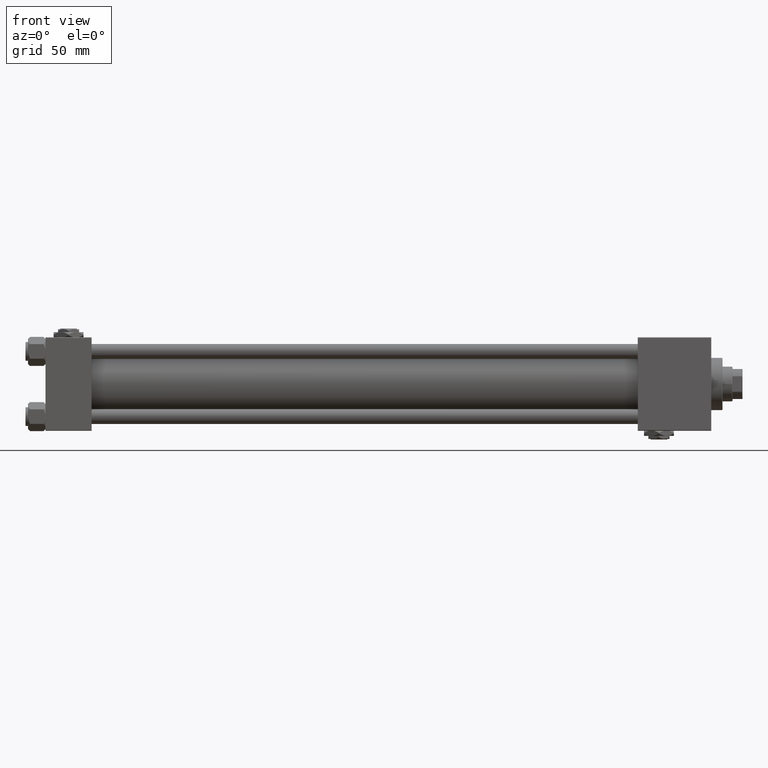
[diagram: clean part render]
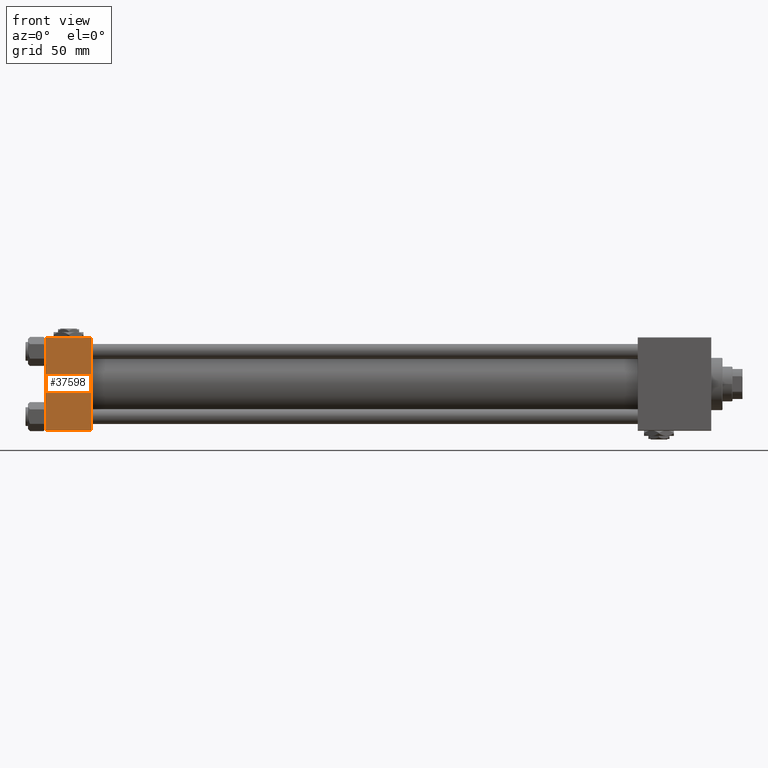
[diagram: same view with one face highlighted and labeled with its STEP entity id]
A machine part, front view. The second image highlights one B-rep face of the part: STEP entity #37598.
In plain terms, the highlighted planar face has unit normal (0, 1, 0).
Its self-contained STEP definition (entity closure, byte-faithful):
#1864 = PLANE ( 'NONE',  #24057 ) ;
#1942 = CARTESIAN_POINT ( 'NONE',  ( 0.000000000000000000, -37.50000000000000711, 36.99999999999999289 ) ) ;
#2439 = LINE ( 'NONE', #31209, #50329 ) ;
#2943 = CARTESIAN_POINT ( 'NONE',  ( 37.00000000000000000, -37.50000000000000711, 37.49999999999999289 ) ) ;
#3663 = CARTESIAN_POINT ( 'NONE',  ( 0.000000000000000000, -37.50000000000000000, -37.00000000000003553 ) ) ;
#10257 = EDGE_CURVE ( 'NONE', #10297, #21593, #2439, .T. ) ;
#10297 = VERTEX_POINT ( 'NONE', #19046 ) ;
#10887 = DIRECTION ( 'NONE',  ( -1.000000000000000000, 0.000000000000000000, 0.000000000000000000 ) ) ;
#12204 = CARTESIAN_POINT ( 'NONE',  ( 37.00000000000000000, -37.50000000000000000, -37.00000000000003553 ) ) ;
#12886 = VECTOR ( 'NONE', #35159, 1000.000000000000000 ) ;
#14167 = ORIENTED_EDGE ( 'NONE', *, *, #16444, .T. ) ;
#15521 = VERTEX_POINT ( 'NONE', #3663 ) ;
#16444 = EDGE_CURVE ( 'NONE', #21593, #15521, #36934, .T. ) ;
#17698 = DIRECTION ( 'NONE',  ( -0.000000000000000000, 1.000000000000000000, 9.251858538542971581E-17 ) ) ;
#17774 = CARTESIAN_POINT ( 'NONE',  ( 37.00000000000000000, -37.50000000000000000, -37.00000000000003553 ) ) ;
#18091 = VERTEX_POINT ( 'NONE', #17774 ) ;
#19046 = CARTESIAN_POINT ( 'NONE',  ( 37.00000000000000000, -37.50000000000000711, 36.99999999999999289 ) ) ;
#20164 = VECTOR ( 'NONE', #32432, 1000.000000000000000 ) ;
#21593 = VERTEX_POINT ( 'NONE', #1942 ) ;
#22483 = LINE ( 'NONE', #2943, #12886 ) ;
#22678 = EDGE_CURVE ( 'NONE', #15521, #18091, #43662, .T. ) ;
#22862 = ORIENTED_EDGE ( 'NONE', *, *, #27809, .F. ) ;
#23144 = DIRECTION ( 'NONE',  ( 0.000000000000000000, -9.251858538542971581E-17, 1.000000000000000000 ) ) ;
#24057 = AXIS2_PLACEMENT_3D ( 'NONE', #37784, #17698, #23144 ) ;
#27042 = VECTOR ( 'NONE', #40728, 1000.000000000000000 ) ;
#27809 = EDGE_CURVE ( 'NONE', #10297, #18091, #22483, .T. ) ;
#31209 = CARTESIAN_POINT ( 'NONE',  ( 37.00000000000000000, -37.50000000000000711, 36.99999999999999289 ) ) ;
#32432 = DIRECTION ( 'NONE',  ( 0.000000000000000000, 9.251858538542971581E-17, -1.000000000000000000 ) ) ;
#35051 = FACE_OUTER_BOUND ( 'NONE', #43190, .T. ) ;
#35159 = DIRECTION ( 'NONE',  ( 0.000000000000000000, 9.251858538542971581E-17, -1.000000000000000000 ) ) ;
#36934 = LINE ( 'NONE', #41176, #20164 ) ;
#37598 = ADVANCED_FACE ( 'NONE', ( #35051 ), #1864, .F. ) ;
#37784 = CARTESIAN_POINT ( 'NONE',  ( 37.00000000000000000, -37.50000000000000711, 37.49999999999999289 ) ) ;
#40728 = DIRECTION ( 'NONE',  ( 1.000000000000000000, 0.000000000000000000, 0.000000000000000000 ) ) ;
#41176 = CARTESIAN_POINT ( 'NONE',  ( 0.000000000000000000, -37.50000000000000711, 37.49999999999999289 ) ) ;
#43190 = EDGE_LOOP ( 'NONE', ( #14167, #45857, #22862, #47641 ) ) ;
#43662 = LINE ( 'NONE', #12204, #27042 ) ;
#45857 = ORIENTED_EDGE ( 'NONE', *, *, #22678, .T. ) ;
#47641 = ORIENTED_EDGE ( 'NONE', *, *, #10257, .T. ) ;
#50329 = VECTOR ( 'NONE', #10887, 1000.000000000000000 ) ;